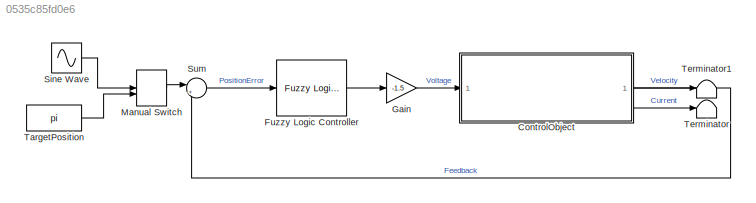
MODEL slx_0535c85fd0e6
KIND model
CONFIG AbsTol = 1e-2
CONFIG EnableMultiTasking = on
CONFIG FixedStep = auto
CONFIG MaxStep = 0.1
CONFIG MinStep = auto
CONFIG RelTol = 1e-2
CONFIG SampleTimeConstraint = Unconstrained
CONFIG SolverName = VariableStepAuto
CONFIG StartTime = 0.0
CONFIG StopTime = 50
BLOCK [SubSystem] ControlObject
  ReferencedSubsystem = ControlObject
BLOCK [Reference] Fuzzy Logic Controller  REF=fuzblock/Fuzzy Logic   (lib defined in mdl_858b3b3e7478)
Controller
  SourceBlock = fuzblock/Fuzzy Logic \nController
  SourceType = Fuzzy Inference System
BLOCK [Gain] Gain
  Gain = -1.5
BLOCK [ManualSwitch] Manual Switch
  CurrentSetting = 0
BLOCK [Sin] Sine Wave
  Amplitude = 12
  SampleTime = 0
BLOCK [Sum] Sum
  Inputs = |+-
BLOCK [Constant] TargetPosition
  Value = pi
BLOCK [Terminator] Terminator
BLOCK [Terminator] Terminator1
LINE ControlObject:1 -> Sum:2
LINE ControlObject:2 -> Terminator1:1
LINE ControlObject:3 -> Terminator:1
LINE Fuzzy Logic Controller:1 -> Gain:1
LINE Gain:1 -> ControlObject:1
LINE Manual Switch:1 -> Sum:1
LINE Sine Wave:1 -> Manual Switch:1
LINE Sum:1 -> Fuzzy Logic Controller:1
LINE TargetPosition:1 -> Manual Switch:2
